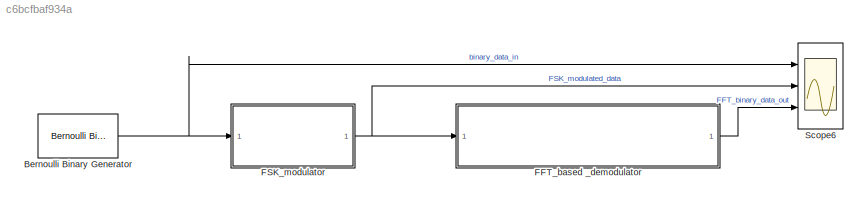
MODEL slx_c6bcfbaf934a
KIND model
CONFIG AbsTol = auto
CONFIG EnableMultiTasking = off
CONFIG FixedStep = auto
CONFIG MaxStep = auto
CONFIG MinStep = auto
CONFIG RelTol = 1e-3
CONFIG SampleTimeConstraint = Unconstrained
CONFIG SolverName = VariableStepAuto
CONFIG StartTime = 0.0
CONFIG StopTime = 1
BLOCK [Reference] Bernoulli Binary Generator  REF=commrandsrc3/Bernoulli Binary
Generator
  Ports = [0, 1]
  SourceBlock = commrandsrc3/Bernoulli Binary\nGenerator
  SourceProductBaseCode = CM
  SourceType = Bernoulli Binary Generator
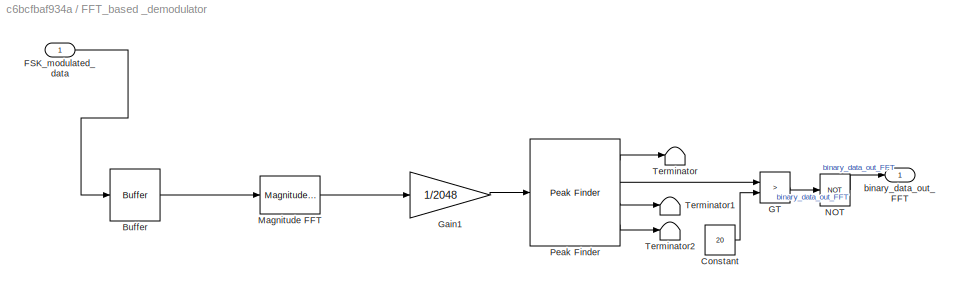
BLOCK [SubSystem] FFT_based _demodulator
  Ports = [1, 1]
  RequestExecContextInheritance = off
BLOCK [Buffer] FFT_based _demodulator/Buffer
  N = 2048
  OutputFrames = off
BLOCK [Constant] FFT_based _demodulator/Constant
  Value = 20
BLOCK [Inport] FFT_based _demodulator/FSK_modulated_data
BLOCK [RelationalOperator] FFT_based _demodulator/GT
  InputSameDT = off
  Operator = >
  OutDataTypeStr = boolean
  Ports = [2, 1]
  RndMeth = Simplest
BLOCK [Gain] FFT_based _demodulator/Gain1
  Gain = 1/2048
BLOCK [Reference] FFT_based _demodulator/Magnitude FFT  REF=dspspect3/Magnitude
FFT
  Ports = [1, 1]
  SourceBlock = dspspect3/Magnitude\nFFT
  SourceProductBaseCode = DS
  SourceType = Magnitude FFT
BLOCK [Logic] FFT_based _demodulator/NOT
  AllPortsSameDT = off
  IconShape = distinctive
  Operator = NOT
  OutDataTypeStr = boolean
  Ports = [1, 1]
BLOCK [Reference] FFT_based _demodulator/Peak Finder  REF=dspsigops/Peak Finder
  Ports = [1, 4]
  SourceBlock = dspsigops/Peak Finder
  SourceProductBaseCode = DS
  SourceType = Peak Finder
BLOCK [Terminator] FFT_based _demodulator/Terminator
BLOCK [Terminator] FFT_based _demodulator/Terminator1
BLOCK [Terminator] FFT_based _demodulator/Terminator2
BLOCK [Outport] FFT_based _demodulator/binary_data_out_FFT
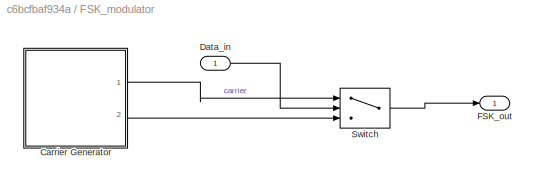
BLOCK [SubSystem] FSK_modulator
  Ports = [1, 1]
  RequestExecContextInheritance = off
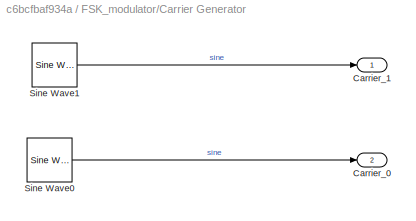
BLOCK [SubSystem] FSK_modulator/Carrier Generator 
  Ports = [0, 2]
  RequestExecContextInheritance = off
BLOCK [Outport] FSK_modulator/Carrier Generator /Carrier_0
  Port = 2
  VectorParamsAs1DForOutWhenUnconnected = off
BLOCK [Outport] FSK_modulator/Carrier Generator /Carrier_1
  VectorParamsAs1DForOutWhenUnconnected = off
BLOCK [Reference] FSK_modulator/Carrier Generator /Sine Wave0  REF=dspsrcs4/Sine Wave
  Ports = [0, 1]
  SourceBlock = dspsrcs4/Sine Wave
  SourceProductBaseCode = DS
  SourceType = Sine Wave
BLOCK [Reference] FSK_modulator/Carrier Generator /Sine Wave1  REF=dspsrcs4/Sine Wave
  Ports = [0, 1]
  SourceBlock = dspsrcs4/Sine Wave
  SourceProductBaseCode = DS
  SourceType = Sine Wave
BLOCK [Inport] FSK_modulator/Data_in
BLOCK [Outport] FSK_modulator/FSK_out
BLOCK [Switch] FSK_modulator/Switch
  Criteria = u2 > Threshold
  InputSameDT = off
  SaturateOnIntegerOverflow = off
  Threshold = 0.5
BLOCK [Scope] Scope6
  Floating = off
  NumInputPorts = 3
  Ports = [3]
  ScopeSpecificationString = Simulink.scopes.TimeScopeBlockCfg('CurrentConfiguration', extmgr.ConfigurationSet(extmgr.Configuration('Core','General UI',true),extmgr.Configuration('Core','Source UI',true),extmgr.Configuration('Sources','WiredSimulink',true,'DataLoggingVariableName','ScopeData7'),extmgr.Configuration('Visuals','Time Domain',true,'SerializedDisplays',{struct('MinYLimReal','-0.125','MaxYLimReal','1.125','YLabelRe...<+2751ch>
NET Bernoulli Binary Generator:1 -> FSK_modulator:1, Scope6:1
LINE FFT_based _demodulator/Buffer:1 -> FFT_based _demodulator/Magnitude FFT:1
LINE FFT_based _demodulator/Constant:1 -> FFT_based _demodulator/GT:2
LINE FFT_based _demodulator/FSK_modulated_data:1 -> FFT_based _demodulator/Buffer:1
LINE FFT_based _demodulator/GT:1 -> FFT_based _demodulator/NOT:1
LINE FFT_based _demodulator/Gain1:1 -> FFT_based _demodulator/Peak Finder:1
LINE FFT_based _demodulator/Magnitude FFT:1 -> FFT_based _demodulator/Gain1:1
LINE FFT_based _demodulator/NOT:1 -> FFT_based _demodulator/binary_data_out_FFT:1
LINE FFT_based _demodulator/Peak Finder:1 -> FFT_based _demodulator/Terminator:1
LINE FFT_based _demodulator/Peak Finder:2 -> FFT_based _demodulator/GT:1
LINE FFT_based _demodulator/Peak Finder:3 -> FFT_based _demodulator/Terminator1:1
LINE FFT_based _demodulator/Peak Finder:4 -> FFT_based _demodulator/Terminator2:1
LINE FFT_based _demodulator:1 -> Scope6:3
LINE FSK_modulator/Carrier Generator /Sine Wave0:1 -> FSK_modulator/Carrier Generator /Carrier_0:1
LINE FSK_modulator/Carrier Generator /Sine Wave1:1 -> FSK_modulator/Carrier Generator /Carrier_1:1
LINE FSK_modulator/Carrier Generator :1 -> FSK_modulator/Switch:1
LINE FSK_modulator/Carrier Generator :2 -> FSK_modulator/Switch:3
LINE FSK_modulator/Data_in:1 -> FSK_modulator/Switch:2
LINE FSK_modulator/Switch:1 -> FSK_modulator/FSK_out:1
NET FSK_modulator:1 -> FFT_based _demodulator:1, Scope6:2
note: NET lines group one-source signal fan-out (src -> all destinations, sorted); 1:1 wires keep LINE
